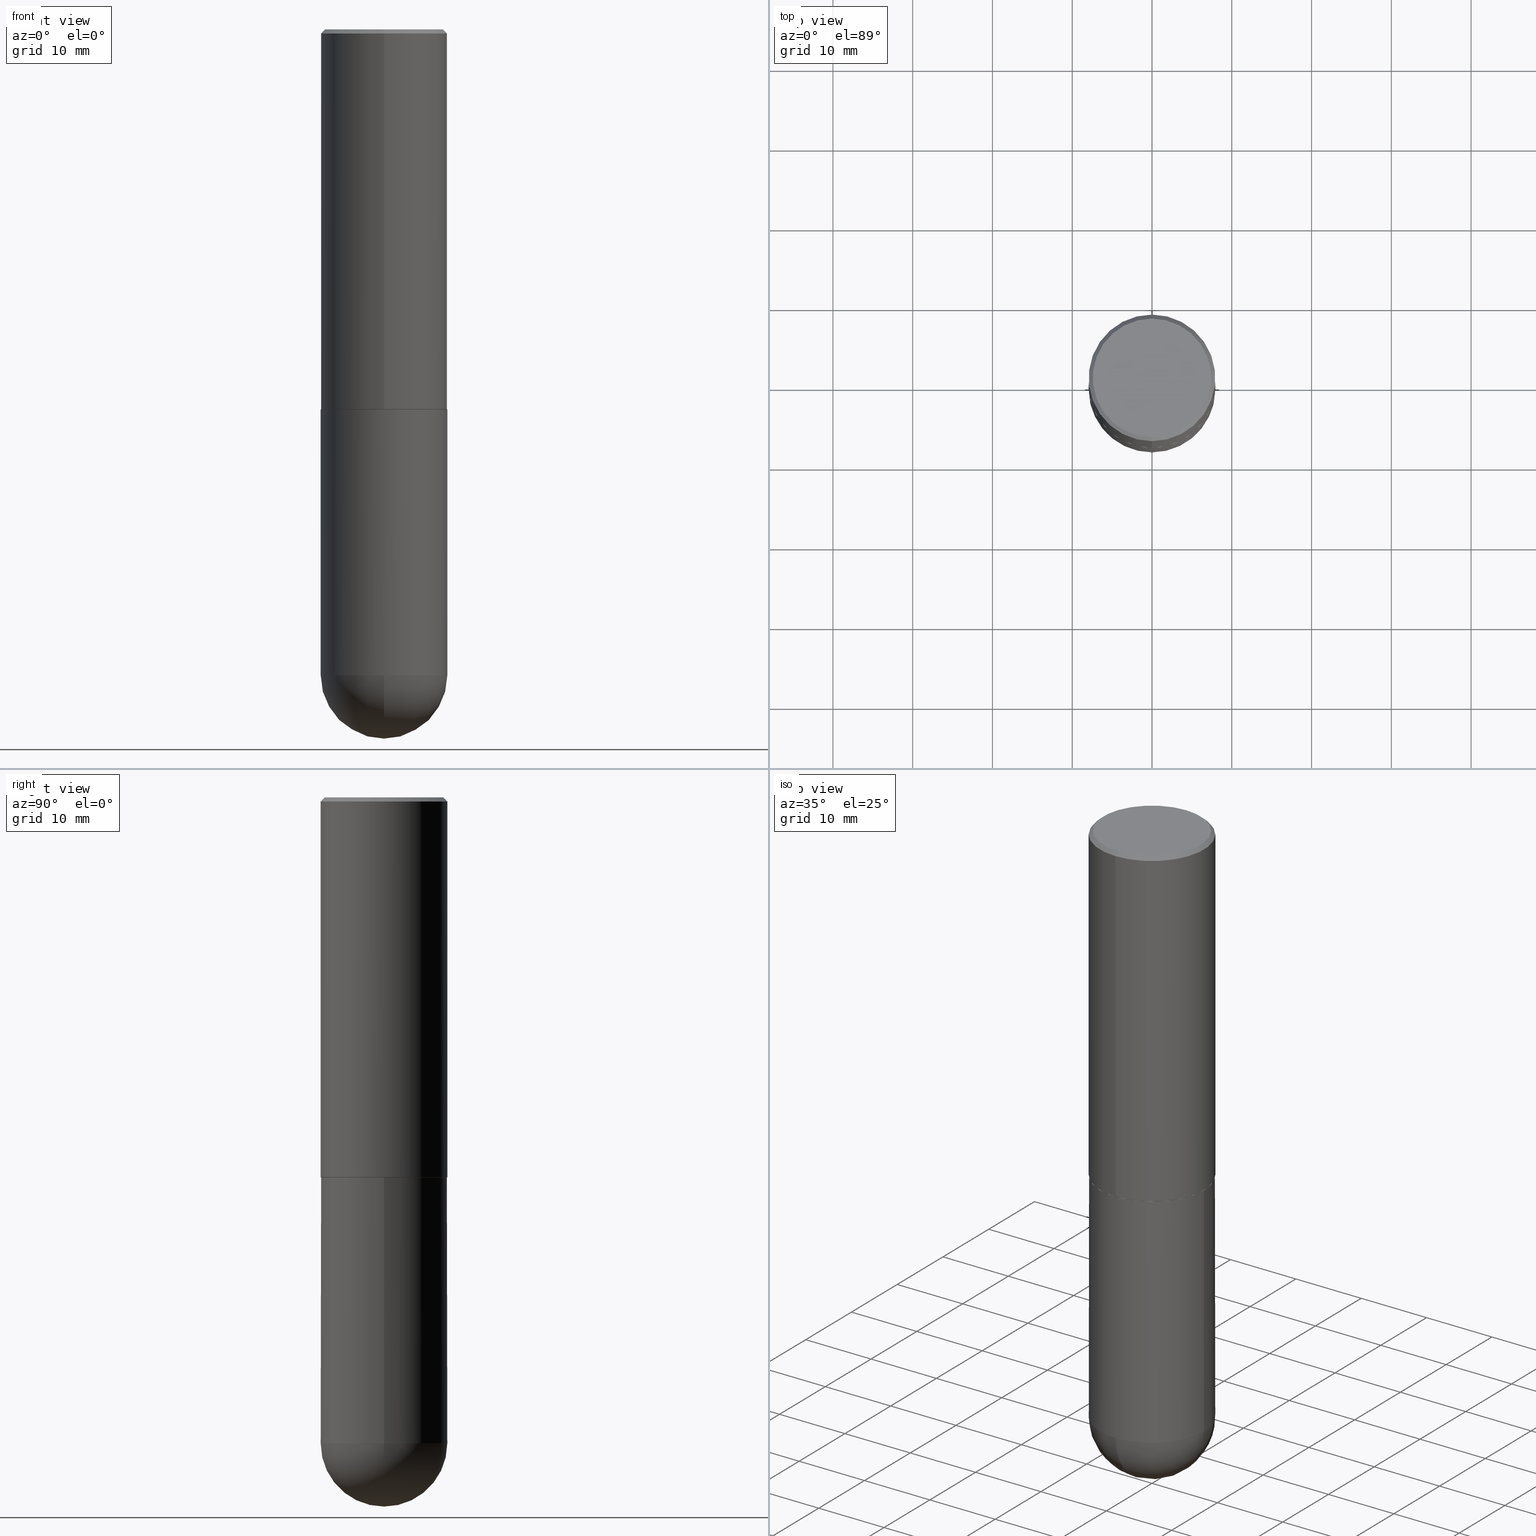
[diagram: canonical four-view strip — front | top / right | iso, engineering-drawing reading convention]
A machine part, canonical four-view strip (front | top / right | iso — engineering-drawing reading convention). The complete STEP part file that produces these views, byte-faithful:
ISO-10303-21;
HEADER;
FILE_DESCRIPTION (( 'STEP AP203' ),
    '1' );
FILE_NAME ('32504.STEP',
    '2024-02-21T17:45:27',
    ( '' ),
    ( '' ),
    'SwSTEP 2.0',
    'SolidWorks 2023',
    '' );
FILE_SCHEMA (( 'CONFIG_CONTROL_DESIGN' ));
ENDSEC;

DATA;
#1 = CARTESIAN_POINT ( 'NONE',  ( 2.182175836777004101E-15, 0.3124999999999934497, -1.875000000000000888 ) ) ;
#2 = APPROVAL_PERSON_ORGANIZATION ( #172, #224, #141 ) ;
#3 = SPHERICAL_SURFACE ( 'NONE', #271, 0.3125000000000002776 ) ;
#4 = COORDINATED_UNIVERSAL_TIME_OFFSET ( 5, 0, .BEHIND. ) ;
#5 = DIRECTION ( 'NONE',  ( -1.000000000000000000, 6.982962677686265922E-15, -4.876176775795935793E-29 ) ) ;
#6 = LINE ( 'NONE', #183, #76 ) ;
#7 = AXIS2_PLACEMENT_3D ( 'NONE', #32, #113, #191 ) ;
#8 = CIRCLE ( 'NONE', #352, 0.3125000000000000000 ) ;
#9 = LINE ( 'NONE', #228, #77 ) ;
#10 = DIRECTION ( 'NONE',  ( -2.444001851767069414E-29, 3.493582101063678231E-15, 1.000000000000000000 ) ) ;
#11 = DIRECTION ( 'NONE',  ( -2.444001851767069414E-29, 3.493582101063678231E-15, 1.000000000000000000 ) ) ;
#12 = CARTESIAN_POINT ( 'NONE',  ( 0.000000000000000000, 0.000000000000000000, 0.000000000000000000 ) ) ;
#13 = VERTEX_POINT ( 'NONE', #301 ) ;
#14 = DIRECTION ( 'NONE',  ( -1.000000000000000000, 6.982962677686265922E-15, -4.883557194083112901E-29 ) ) ;
#15 = ADVANCED_FACE ( 'NONE', ( #75 ), #204, .T. ) ;
#16 = COORDINATED_UNIVERSAL_TIME_OFFSET ( 5, 0, .BEHIND. ) ;
#17 = ADVANCED_FACE ( 'NONE', ( #347 ), #282, .F. ) ;
#18 = CALENDAR_DATE ( 2024, 21, 2 ) ;
#19 = AXIS2_PLACEMENT_3D ( 'NONE', #284, #356, #394 ) ;
#20 = EDGE_LOOP ( 'NONE', ( #309, #111, #304, #207 ) ) ;
#21 = EDGE_CURVE ( 'NONE', #13, #166, #407, .T. ) ;
#22 = ORIENTED_EDGE ( 'NONE', *, *, #21, .T. ) ;
#23 = APPLICATION_PROTOCOL_DEFINITION ( 'international standard', 'config_control_design', 1994, #57 ) ;
#24 = EDGE_CURVE ( 'NONE', #307, #373, #315, .T. ) ;
#25 = ORIENTED_EDGE ( 'NONE', *, *, #340, .F. ) ;
#26 = ORIENTED_EDGE ( 'NONE', *, *, #364, .F. ) ;
#27 = CLOSED_SHELL ( 'NONE', ( #110, #200, #348, #17, #311 ) ) ;
#28 = PERSON_AND_ORGANIZATION ( #125, #223 ) ;
#29 = CARTESIAN_POINT ( 'NONE',  ( -2.182175836776959136E-15, -0.3125000000000001665, 1.091744406582400014E-15 ) ) ;
#30 = PERSON_AND_ORGANIZATION_ROLE ( 'design_supplier' ) ;
#31 = DIRECTION ( 'NONE',  ( 1.000000000000000000, -6.982962677686266711E-15, 4.876176775795936353E-29 ) ) ;
#32 = CARTESIAN_POINT ( 'NONE',  ( 7.463812041801236655E-29, -1.160327913570257494E-14, -3.187500000000000000 ) ) ;
#33 = AXIS2_PLACEMENT_3D ( 'NONE', #350, #233, #393 ) ;
#34 = DIRECTION ( 'NONE',  ( 1.000000000000000000, -6.982962677686269077E-15, 0.000000000000000000 ) ) ;
#35 = CARTESIAN_POINT ( 'NONE',  ( 4.580059470211486852E-29, -6.546972857393332440E-15, -1.873999999999999666 ) ) ;
#36 = EDGE_CURVE ( 'NONE', #373, #334, #127, .T. ) ;
#37 = DIRECTION ( 'NONE',  ( 6.982962677686265922E-15, 1.000000000000000000, -3.496765431890253764E-15 ) ) ;
#38 = AXIS2_PLACEMENT_3D ( 'NONE', #236, #357, #70 ) ;
#39 = FACE_OUTER_BOUND ( 'NONE', #391, .T. ) ;
#40 = DIRECTION ( 'NONE',  ( -2.444001851767069414E-29, 3.493582101063678231E-15, 1.000000000000000000 ) ) ;
#41 = AXIS2_PLACEMENT_3D ( 'NONE', #35, #225, #114 ) ;
#42 = CARTESIAN_POINT ( 'NONE',  ( 7.463812041801236655E-29, -1.160327913570257494E-14, -3.187500000000000000 ) ) ;
#43 = CARTESIAN_POINT ( 'NONE',  ( 0.3125000000000000000, -8.728703347107855476E-15, -1.874999999999999778 ) ) ;
#44 = ORIENTED_EDGE ( 'NONE', *, *, #340, .T. ) ;
#45 = DATE_TIME_ROLE ( 'creation_date' ) ;
#46 = CC_DESIGN_APPROVAL ( #297, ( #231 ) ) ;
#47 = VERTEX_POINT ( 'NONE', #154 ) ;
#48 = CIRCLE ( 'NONE', #245, 0.3114999999999999991 ) ;
#49 = APPROVAL_DATE_TIME ( #208, #314 ) ;
#50 = EDGE_LOOP ( 'NONE', ( #142, #26, #274, #258 ) ) ;
#51 = ORIENTED_EDGE ( 'NONE', *, *, #392, .T. ) ;
#52 = EDGE_CURVE ( 'NONE', #78, #80, #6, .T. ) ;
#53 = EDGE_LOOP ( 'NONE', ( #330, #177 ) ) ;
#54 = AXIS2_PLACEMENT_3D ( 'NONE', #381, #86, #349 ) ;
#55 = DIRECTION ( 'NONE',  ( 6.982962677686265133E-15, 1.000000000000000000, -3.496765431890256920E-15 ) ) ;
#56 = FACE_OUTER_BOUND ( 'NONE', #278, .T. ) ;
#57 = APPLICATION_CONTEXT ( 'configuration controlled 3d designs of mechanical parts and assemblies' ) ;
#58 = DIRECTION ( 'NONE',  ( 2.438088387897960049E-29, -3.491481338843145188E-15, -1.000000000000000000 ) ) ;
#59 = AXIS2_PLACEMENT_3D ( 'NONE', #305, #405, #365 ) ;
#60 = DATE_AND_TIME ( #155, #230 ) ;
#61 = DIRECTION ( 'NONE',  ( -2.445468806185136597E-29, 3.491481338843145583E-15, 1.000000000000000000 ) ) ;
#62 = CARTESIAN_POINT ( 'NONE',  ( 7.463812041801236655E-29, -1.160327913570257494E-14, -3.187500000000000000 ) ) ;
#63 = DIRECTION ( 'NONE',  ( 2.444001851767069414E-29, -3.493582101063678231E-15, -1.000000000000000000 ) ) ;
#64 = EDGE_LOOP ( 'NONE', ( #134, #148 ) ) ;
#65 = APPROVAL_PERSON_ORGANIZATION ( #79, #314, #105 ) ;
#66 = DIRECTION ( 'NONE',  ( -2.445468806185136877E-29, 3.491481338843145188E-15, 1.000000000000000000 ) ) ;
#67 = CARTESIAN_POINT ( 'NONE',  ( 0.000000000000000000, 0.000000000000000000, 0.000000000000000000 ) ) ;
#68 = LINE ( 'NONE', #131, #213 ) ;
#69 = ORIENTED_EDGE ( 'NONE', *, *, #91, .T. ) ;
#70 = DIRECTION ( 'NONE',  ( -6.982962677686265133E-15, -1.000000000000000000, 3.493582101063678231E-15 ) ) ;
#71 = VERTEX_POINT ( 'NONE', #120 ) ;
#72 = EDGE_LOOP ( 'NONE', ( #25, #237 ) ) ;
#73 = LINE ( 'NONE', #203, #272 ) ;
#74 = CC_DESIGN_DATE_AND_TIME_ASSIGNMENT ( #273, #45, ( #234 ) ) ;
#75 = FACE_OUTER_BOUND ( 'NONE', #20, .T. ) ;
#76 = VECTOR ( 'NONE', #219, 39.37007874015748143 ) ;
#77 = VECTOR ( 'NONE', #193, 39.37007874015748854 ) ;
#78 = VERTEX_POINT ( 'NONE', #255 ) ;
#79 = PERSON_AND_ORGANIZATION ( #125, #223 ) ;
#80 = VERTEX_POINT ( 'NONE', #214 ) ;
#81 = EDGE_LOOP ( 'NONE', ( #366, #241, #281, #355 ) ) ;
#82 = PERSON_AND_ORGANIZATION_ROLE ( 'creator' ) ;
#83 = ADVANCED_FACE ( 'NONE', ( #386 ), #205, .T. ) ;
#84 = LINE ( 'NONE', #312, #338 ) ;
#85 = CIRCLE ( 'NONE', #19, 0.3125000000000000000 ) ;
#86 = DIRECTION ( 'NONE',  ( -2.444001851767069414E-29, 3.493582101063678231E-15, 1.000000000000000000 ) ) ;
#87 = DIRECTION ( 'NONE',  ( 1.000000000000000000, -6.982962677686269077E-15, 0.000000000000000000 ) ) ;
#88 = DIRECTION ( 'NONE',  ( 2.444001851767069414E-29, -3.493582101063678231E-15, -1.000000000000000000 ) ) ;
#89 = CIRCLE ( 'NONE', #198, 0.3125000000000000000 ) ;
#90 = CARTESIAN_POINT ( 'NONE',  ( 0.000000000000000000, 0.000000000000000000, 0.000000000000000000 ) ) ;
#91 = EDGE_CURVE ( 'NONE', #71, #47, #135, .T. ) ;
#92 = CYLINDRICAL_SURFACE ( 'NONE', #339, 0.3125000000000001665 ) ;
#93 = CC_DESIGN_PERSON_AND_ORGANIZATION_ASSIGNMENT ( #287, #383, ( #231 ) ) ;
#94 = DIRECTION ( 'NONE',  ( -6.982962677686265133E-15, -1.000000000000000000, 3.493582101063678231E-15 ) ) ;
#95 = AXIS2_PLACEMENT_3D ( 'NONE', #1, #58, #5 ) ;
#96 = AXIS2_PLACEMENT_3D ( 'NONE', #372, #169, #240 ) ;
#97 = LINE ( 'NONE', #165, #153 ) ;
#98 = FACE_OUTER_BOUND ( 'NONE', #211, .T. ) ;
#99 = DIRECTION ( 'NONE',  ( -6.982962677686265922E-15, -1.000000000000000000, 3.507991003100177457E-15 ) ) ;
#100 = VECTOR ( 'NONE', #150, 39.37007874015748143 ) ;
#101 = AXIS2_PLACEMENT_3D ( 'NONE', #129, #63, #395 ) ;
#102 = ORIENTED_EDGE ( 'NONE', *, *, #24, .T. ) ;
#103 = CARTESIAN_POINT ( 'NONE',  ( 2.112346210000095443E-15, 0.2924999999999999267, -1.012721266631418966E-15 ) ) ;
#104 = ORIENTED_EDGE ( 'NONE', *, *, #288, .T. ) ;
#105 = APPROVAL_ROLE ( '' ) ;
#106 = EDGE_LOOP ( 'NONE', ( #353, #400, #144, #406 ) ) ;
#107 = DIRECTION ( 'NONE',  ( 0.000000000000000000, 0.000000000000000000, 1.000000000000000000 ) ) ;
#108 = CIRCLE ( 'NONE', #59, 0.3125000000000000000 ) ;
#109 = ORIENTED_EDGE ( 'NONE', *, *, #21, .F. ) ;
#110 = ADVANCED_FACE ( 'NONE', ( #411 ), #182, .T. ) ;
#111 = ORIENTED_EDGE ( 'NONE', *, *, #132, .T. ) ;
#112 = APPROVAL_ROLE ( '' ) ;
#113 = DIRECTION ( 'NONE',  ( 1.000000000000000000, -6.982962677686265922E-15, 4.883557194083112340E-29 ) ) ;
#114 = DIRECTION ( 'NONE',  ( -6.982962677686265922E-15, -1.000000000000000000, 3.496765431890254553E-15 ) ) ;
#115 = CC_DESIGN_APPROVAL ( #314, ( #234 ) ) ;
#116 = DATE_AND_TIME ( #410, #346 ) ;
#117 = CARTESIAN_POINT ( 'NONE',  ( 7.463812041801236655E-29, -1.160327913570257494E-14, -3.187500000000000000 ) ) ;
#118 = APPROVAL_DATE_TIME ( #188, #297 ) ;
#119 = DIRECTION ( 'NONE',  ( -2.444001851767069414E-29, 3.493582101063678231E-15, 1.000000000000000000 ) ) ;
#120 = CARTESIAN_POINT ( 'NONE',  ( -2.220446049250237350E-15, -0.3125000000000114908, -3.187499999999998668 ) ) ;
#121 = AXIS2_PLACEMENT_3D ( 'NONE', #62, #345, #186 ) ;
#122 = CIRCLE ( 'NONE', #38, 0.2924999999999999267 ) ;
#123 = CARTESIAN_POINT ( 'NONE',  ( 2.216893335571558331E-15, 0.3114999999999934488, -1.875000000000000666 ) ) ;
#124 = DIRECTION ( 'NONE',  ( -1.000000000000000000, 6.982962677686265922E-15, -4.883557194083112901E-29 ) ) ;
#125 = PERSON ( 'UNSPECIFIED', 'UNSPECIFIED', 'UNSPECIFIED', ('UNSPECIFIED'), ('UNSPECIFIED'), ('UNSPECIFIED') ) ;
#126 = DIRECTION ( 'NONE',  ( -6.982962677686265922E-15, -1.000000000000000000, 3.507991003100177457E-15 ) ) ;
#127 = CIRCLE ( 'NONE', #318, 0.3125000000000002220 ) ;
#128 = APPROVAL_PERSON_ORGANIZATION ( #285, #297, #112 ) ;
#129 = CARTESIAN_POINT ( 'NONE',  ( 4.888003703534155364E-31, -6.987164202127379586E-17, -0.02000000000000006981 ) ) ;
#130 = ADVANCED_FACE ( 'NONE', ( #190 ), #378, .F. ) ;
#131 = CARTESIAN_POINT ( 'NONE',  ( 2.220446049250313475E-15, 0.3125000000000001665, -1.091744406582400014E-15 ) ) ;
#132 = EDGE_CURVE ( 'NONE', #334, #373, #185, .T. ) ;
#133 = DIRECTION ( 'NONE',  ( -6.982962677686265133E-15, -1.000000000000000000, 3.496765431890256920E-15 ) ) ;
#134 = ORIENTED_EDGE ( 'NONE', *, *, #239, .T. ) ;
#135 = CIRCLE ( 'NONE', #264, 0.3125000000000000000 ) ;
#136 = AXIS2_PLACEMENT_3D ( 'NONE', #335, #275, #361 ) ;
#137 = PERSON_AND_ORGANIZATION ( #125, #223 ) ;
#138 = EDGE_CURVE ( 'NONE', #78, #369, #158, .T. ) ;
#139 = EDGE_LOOP ( 'NONE', ( #180, #299, #102, #175 ) ) ;
#140 = EDGE_CURVE ( 'NONE', #276, #71, #379, .T. ) ;
#141 = APPROVAL_ROLE ( '' ) ;
#142 = ORIENTED_EDGE ( 'NONE', *, *, #52, .F. ) ;
#143 = CARTESIAN_POINT ( 'NONE',  ( -2.182175836776913776E-15, -0.3125000000000067724, -1.873999999999998556 ) ) ;
#144 = ORIENTED_EDGE ( 'NONE', *, *, #409, .T. ) ;
#145 = APPROVAL_STATUS ( 'not_yet_approved' ) ;
#146 = ADVANCED_BREP_SHAPE_REPRESENTATION ( '32504', ( #397, #259, #147 ), #250 ) ;
#147 = AXIS2_PLACEMENT_3D ( 'NONE', #326, #107, #333 ) ;
#148 = ORIENTED_EDGE ( 'NONE', *, *, #210, .T. ) ;
#149 = EDGE_CURVE ( 'NONE', #276, #13, #179, .T. ) ;
#150 = DIRECTION ( 'NONE',  ( -2.444001851767069134E-29, 3.493582101063678231E-15, 1.000000000000000000 ) ) ;
#151 = EDGE_CURVE ( 'NONE', #373, #80, #384, .T. ) ;
#152 = CARTESIAN_POINT ( 'NONE',  ( 2.042516583223232145E-15, 0.2924999999999999267, -1.017297015596272278E-15 ) ) ;
#153 = VECTOR ( 'NONE', #66, 39.37007874015748143 ) ;
#154 = CARTESIAN_POINT ( 'NONE',  ( 0.3125000000000000000, -1.101998797572367239E-14, -3.187500000000000000 ) ) ;
#155 = CALENDAR_DATE ( 2024, 21, 2 ) ;
#156 = DIRECTION ( 'NONE',  ( -6.982962677686265133E-15, -1.000000000000000000, 3.493582101063678231E-15 ) ) ;
#157 = CARTESIAN_POINT ( 'NONE',  ( 4.582503472063253611E-29, -6.550466439494396141E-15, -1.874999999999999556 ) ) ;
#158 = CIRCLE ( 'NONE', #54, 0.2924999999999999267 ) ;
#159 = CONICAL_SURFACE ( 'NONE', #101, 0.3125000000000000000, 0.7853981633974487231 ) ;
#160 = FACE_OUTER_BOUND ( 'NONE', #72, .T. ) ;
#161 = PRODUCT_RELATED_PRODUCT_CATEGORY ( 'detail', '', ( #290 ) ) ;
#162 = DIRECTION ( 'NONE',  ( -6.982962677686265133E-15, -1.000000000000000000, 3.496765431890256920E-15 ) ) ;
#163 = CARTESIAN_POINT ( 'NONE',  ( -2.175192874099225790E-15, -0.3115000000000065494, -1.874999999999998446 ) ) ;
#164 = LOCAL_TIME ( 12, 45, 27.00000000000000000, #16 ) ;
#165 = CARTESIAN_POINT ( 'NONE',  ( -0.3125000000000000000, 2.220446049250313081E-15, -1.537167215704658232E-29 ) ) ;
#166 = VERTEX_POINT ( 'NONE', #249 ) ;
#167 = CARTESIAN_POINT ( 'NONE',  ( 4.888003703534155364E-31, -6.987164202127379586E-17, -0.02000000000000006981 ) ) ;
#168 = ORIENTED_EDGE ( 'NONE', *, *, #376, .T. ) ;
#169 = DIRECTION ( 'NONE',  ( -2.445468806185136597E-29, 3.491481338843145583E-15, 1.000000000000000000 ) ) ;
#170 = ORIENTED_EDGE ( 'NONE', *, *, #140, .F. ) ;
#171 = PRODUCT_DEFINITION_FORMATION_WITH_SPECIFIED_SOURCE ( 'ANY', '', #290, .NOT_KNOWN. ) ;
#172 = PERSON_AND_ORGANIZATION ( #125, #223 ) ;
#173 = ORIENTED_EDGE ( 'NONE', *, *, #91, .F. ) ;
#174 =( CONVERSION_BASED_UNIT ( 'INCH', #329 ) LENGTH_UNIT ( ) NAMED_UNIT ( #382 ) );
#175 = ORIENTED_EDGE ( 'NONE', *, *, #132, .F. ) ;
#176 =( NAMED_UNIT ( * ) SI_UNIT ( $, .STERADIAN. ) SOLID_ANGLE_UNIT ( ) );
#177 = ORIENTED_EDGE ( 'NONE', *, *, #138, .T. ) ;
#178 = CC_DESIGN_DATE_AND_TIME_ASSIGNMENT ( #60, #412, ( #231 ) ) ;
#179 = CIRCLE ( 'NONE', #7, 0.3125000000000002776 ) ;
#180 = ORIENTED_EDGE ( 'NONE', *, *, #288, .F. ) ;
#181 = PRODUCT_DEFINITION_SHAPE ( 'NONE', 'NONE',  #234 ) ;
#182 = CYLINDRICAL_SURFACE ( 'NONE', #358, 0.3125000000000000000 ) ;
#183 = CARTESIAN_POINT ( 'NONE',  ( -2.143905624303602824E-15, -0.3125000000000000555, -0.01999999999999897693 ) ) ;
#184 = APPROVAL_STATUS ( 'not_yet_approved' ) ;
#185 = CIRCLE ( 'NONE', #41, 0.3125000000000002220 ) ;
#186 = DIRECTION ( 'NONE',  ( -7.105427357601000281E-15, -1.000000000000000000, 0.000000000000000000 ) ) ;
#187 = CC_DESIGN_SECURITY_CLASSIFICATION ( #231, ( #171 ) ) ;
#188 = DATE_AND_TIME ( #216, #371 ) ;
#189 = EDGE_CURVE ( 'NONE', #47, #402, #84, .T. ) ;
#190 = FACE_OUTER_BOUND ( 'NONE', #53, .T. ) ;
#191 = DIRECTION ( 'NONE',  ( 6.982962677686265922E-15, 1.000000000000000000, 0.000000000000000000 ) ) ;
#192 = CARTESIAN_POINT ( 'NONE',  ( 4.582503472063253611E-29, -6.550466439494396141E-15, -1.874999999999999556 ) ) ;
#193 = DIRECTION ( 'NONE',  ( 5.024295867789091064E-15, 0.7071067811866947883, 0.7071067811864001351 ) ) ;
#194 = CC_DESIGN_PERSON_AND_ORGANIZATION_ASSIGNMENT ( #28, #30, ( #171 ) ) ;
#195 = CARTESIAN_POINT ( 'NONE',  ( 4.582503472063253611E-29, -6.550466439494396141E-15, -1.874999999999999556 ) ) ;
#196 = CARTESIAN_POINT ( 'NONE',  ( 8.241383017002520278E-29, -1.267523194785438148E-14, -3.500000000000000444 ) ) ;
#197 = AXIS2_PLACEMENT_3D ( 'NONE', #310, #88, #55 ) ;
#198 = AXIS2_PLACEMENT_3D ( 'NONE', #354, #269, #261 ) ;
#199 = CALENDAR_DATE ( 2024, 21, 2 ) ;
#200 = ADVANCED_FACE ( 'NONE', ( #56 ), #3, .T. ) ;
#201 = ORIENTED_EDGE ( 'NONE', *, *, #189, .T. ) ;
#202 = CC_DESIGN_PERSON_AND_ORGANIZATION_ASSIGNMENT ( #325, #399, ( #234 ) ) ;
#203 = CARTESIAN_POINT ( 'NONE',  ( 2.182175836776958741E-15, 0.3124999999999999445, -0.02000000000000116268 ) ) ;
#204 = CYLINDRICAL_SURFACE ( 'NONE', #229, 0.3125000000000001665 ) ;
#205 = CONICAL_SURFACE ( 'NONE', #197, 0.3125000000000000000, 0.7853981633974487231 ) ;
#206 = CONICAL_SURFACE ( 'NONE', #320, 0.3114999999999999991, 0.7853981633976532262 ) ;
#207 = ORIENTED_EDGE ( 'NONE', *, *, #226, .F. ) ;
#208 = DATE_AND_TIME ( #199, #302 ) ;
#209 = ORIENTED_EDGE ( 'NONE', *, *, #189, .F. ) ;
#210 = EDGE_CURVE ( 'NONE', #268, #402, #85, .T. ) ;
#211 = EDGE_LOOP ( 'NONE', ( #170, #359, #270, #173 ) ) ;
#212 = SECURITY_CLASSIFICATION_LEVEL ( 'unclassified' ) ;
#213 = VECTOR ( 'NONE', #396, 39.37007874015748143 ) ;
#214 = CARTESIAN_POINT ( 'NONE',  ( -2.143905624303602824E-15, -0.3125000000000000555, -0.01999999999999897693 ) ) ;
#215 = ADVANCED_FACE ( 'NONE', ( #292 ), #92, .T. ) ;
#216 = CALENDAR_DATE ( 2024, 21, 2 ) ;
#217 = DIRECTION ( 'NONE',  ( -6.982962677686265922E-15, -1.000000000000000000, 3.496765431890254553E-15 ) ) ;
#218 = SHAPE_DEFINITION_REPRESENTATION ( #181, #146 ) ;
#219 = DIRECTION ( 'NONE',  ( -4.851104656540965853E-15, -0.7071067811865502373, -0.7071067811865447972 ) ) ;
#220 = COORDINATED_UNIVERSAL_TIME_OFFSET ( 5, 0, .BEHIND. ) ;
#221 = CLOSED_SHELL ( 'NONE', ( #328, #215, #83, #344, #15, #260, #367, #130 ) ) ;
#222 = CARTESIAN_POINT ( 'NONE',  ( 7.794931819715121781E-29, -1.112909676756252622E-14, -3.187500000000000000 ) ) ;
#223 = ORGANIZATION ( 'UNSPECIFIED', 'UNSPECIFIED', '' ) ;
#224 = APPROVAL ( #303, 'UNSPECIFIED' ) ;
#225 = DIRECTION ( 'NONE',  ( -2.444001851767069414E-29, 3.493582101063678231E-15, 1.000000000000000000 ) ) ;
#226 = EDGE_CURVE ( 'NONE', #235, #80, #8, .T. ) ;
#227 = FACE_OUTER_BOUND ( 'NONE', #139, .T. ) ;
#228 = CARTESIAN_POINT ( 'NONE',  ( 2.213340621892757432E-15, 0.3114999999999934488, -1.875000000000000666 ) ) ;
#229 = AXIS2_PLACEMENT_3D ( 'NONE', #243, #253, #156 ) ;
#230 = LOCAL_TIME ( 12, 45, 27.00000000000000000, #220 ) ;
#231 = SECURITY_CLASSIFICATION ( '', '', #212 ) ;
#232 = CARTESIAN_POINT ( 'NONE',  ( -0.3125000000000000000, -6.617366089696398596E-15, -1.874999999999999778 ) ) ;
#233 = DIRECTION ( 'NONE',  ( -2.444001851767069414E-29, 3.493582101063678231E-15, 1.000000000000000000 ) ) ;
#234 = PRODUCT_DEFINITION ( 'UNKNOWN', '', #171, #267 ) ;
#235 = VERTEX_POINT ( 'NONE', #390 ) ;
#236 = CARTESIAN_POINT ( 'NONE',  ( -2.236627788664550578E-46, 3.197150936514439104E-32, 9.151497929706629664E-18 ) ) ;
#237 = ORIENTED_EDGE ( 'NONE', *, *, #317, .F. ) ;
#238 = CIRCLE ( 'NONE', #332, 0.3114999999999999991 ) ;
#239 = EDGE_CURVE ( 'NONE', #402, #268, #89, .T. ) ;
#240 = DIRECTION ( 'NONE',  ( 1.000000000000000000, -6.982962677686269077E-15, 0.000000000000000000 ) ) ;
#241 = ORIENTED_EDGE ( 'NONE', *, *, #362, .T. ) ;
#242 = ORIENTED_EDGE ( 'NONE', *, *, #239, .F. ) ;
#243 = CARTESIAN_POINT ( 'NONE',  ( 0.000000000000000000, 0.000000000000000000, 0.000000000000000000 ) ) ;
#244 = AXIS2_PLACEMENT_3D ( 'NONE', #222, #313, #34 ) ;
#245 = AXIS2_PLACEMENT_3D ( 'NONE', #192, #11, #99 ) ;
#246 = PERSON_AND_ORGANIZATION_ROLE ( 'design_owner' ) ;
#247 = ORIENTED_EDGE ( 'NONE', *, *, #140, .T. ) ;
#248 = ORIENTED_EDGE ( 'NONE', *, *, #210, .F. ) ;
#249 = CARTESIAN_POINT ( 'NONE',  ( -0.3125000000000000000, -6.617366089696400174E-15, -3.187500000000000000 ) ) ;
#250 =( GEOMETRIC_REPRESENTATION_CONTEXT ( 3 ) GLOBAL_UNCERTAINTY_ASSIGNED_CONTEXT ( ( #262 ) ) GLOBAL_UNIT_ASSIGNED_CONTEXT ( ( #174, #280, #176 ) ) REPRESENTATION_CONTEXT ( 'NONE', 'WORKASPACE' ) );
#251 = CARTESIAN_POINT ( 'NONE',  ( -2.175192874099225790E-15, -0.3115000000000065494, -1.874999999999998446 ) ) ;
#252 = APPROVAL_DATE_TIME ( #116, #224 ) ;
#253 = DIRECTION ( 'NONE',  ( -2.444001851767069414E-29, 3.493582101063678231E-15, 1.000000000000000000 ) ) ;
#254 = APPLICATION_CONTEXT ( 'configuration controlled 3d designs of mechanical parts and assemblies' ) ;
#255 = CARTESIAN_POINT ( 'NONE',  ( -2.075300644325887493E-15, -0.2924999999999999267, 1.031024262490832213E-15 ) ) ;
#256 = DIRECTION ( 'NONE',  ( 2.444001851767069134E-29, -3.493582101063678231E-15, -1.000000000000000000 ) ) ;
#257 = DIRECTION ( 'NONE',  ( 6.982962677686265922E-15, 1.000000000000000000, -3.496765431890253764E-15 ) ) ;
#258 = ORIENTED_EDGE ( 'NONE', *, *, #226, .T. ) ;
#259 = MANIFOLD_SOLID_BREP ( 'Body-Move/Copy2[2]', #221 ) ;
#260 = ADVANCED_FACE ( 'NONE', ( #227 ), #279, .T. ) ;
#261 = DIRECTION ( 'NONE',  ( 1.000000000000000000, -6.982962677686265133E-15, 0.000000000000000000 ) ) ;
#262 = UNCERTAINTY_MEASURE_WITH_UNIT (LENGTH_MEASURE( 1.000000000000000082E-05 ), #174, 'distance_accuracy_value', 'NONE');
#263 = FACE_OUTER_BOUND ( 'NONE', #50, .T. ) ;
#264 = AXIS2_PLACEMENT_3D ( 'NONE', #283, #286, #87 ) ;
#265 = AXIS2_PLACEMENT_3D ( 'NONE', #67, #322, #291 ) ;
#266 = DIRECTION ( 'NONE',  ( -6.982962677686265922E-15, -1.000000000000000000, 3.507991003100177457E-15 ) ) ;
#267 = DESIGN_CONTEXT ( 'detailed design', #254, 'design' ) ;
#268 = VERTEX_POINT ( 'NONE', #232 ) ;
#269 = DIRECTION ( 'NONE',  ( -2.445468806185136597E-29, 3.491481338843145583E-15, 1.000000000000000000 ) ) ;
#270 = ORIENTED_EDGE ( 'NONE', *, *, #392, .F. ) ;
#271 = AXIS2_PLACEMENT_3D ( 'NONE', #117, #124, #37 ) ;
#272 = VECTOR ( 'NONE', #277, 39.37007874015748143 ) ;
#273 = DATE_AND_TIME ( #18, #164 ) ;
#274 = ORIENTED_EDGE ( 'NONE', *, *, #398, .T. ) ;
#275 = DIRECTION ( 'NONE',  ( -2.444001851767069134E-29, 3.493582101063678231E-15, 1.000000000000000000 ) ) ;
#276 = VERTEX_POINT ( 'NONE', #196 ) ;
#277 = DIRECTION ( 'NONE',  ( 4.937700262164549620E-15, 0.7071067811865453523, -0.7071067811865496822 ) ) ;
#278 = EDGE_LOOP ( 'NONE', ( #306, #247, #408, #109 ) ) ;
#279 = CONICAL_SURFACE ( 'NONE', #33, 0.3114999999999999991, 0.7853981633976532262 ) ;
#280 =( NAMED_UNIT ( * ) PLANE_ANGLE_UNIT ( ) SI_UNIT ( $, .RADIAN. ) );
#281 = ORIENTED_EDGE ( 'NONE', *, *, #409, .F. ) ;
#282 = PLANE ( 'NONE',  #95 ) ;
#283 = CARTESIAN_POINT ( 'NONE',  ( 7.794931819715121781E-29, -1.112909676756252622E-14, -3.187500000000000000 ) ) ;
#284 = CARTESIAN_POINT ( 'NONE',  ( 4.585254011597130558E-29, -6.546527510330897918E-15, -1.874999999999999778 ) ) ;
#285 = PERSON_AND_ORGANIZATION ( #125, #223 ) ;
#286 = DIRECTION ( 'NONE',  ( -2.445468806185136597E-29, 3.491481338843145583E-15, 1.000000000000000000 ) ) ;
#287 = PERSON_AND_ORGANIZATION ( #125, #223 ) ;
#288 = EDGE_CURVE ( 'NONE', #327, #334, #9, .T. ) ;
#289 = CARTESIAN_POINT ( 'NONE',  ( 4.580059470211486852E-29, -6.546972857393332440E-15, -1.873999999999999666 ) ) ;
#290 = PRODUCT ( '32504', '32504', '', ( #374 ) ) ;
#291 = DIRECTION ( 'NONE',  ( 1.000000000000000000, -6.982962677686266711E-15, 4.876176775795936353E-29 ) ) ;
#292 = FACE_OUTER_BOUND ( 'NONE', #81, .T. ) ;
#293 = DIRECTION ( 'NONE',  ( -2.444001851767069414E-29, 3.493582101063678231E-15, 1.000000000000000000 ) ) ;
#294 = DIRECTION ( 'NONE',  ( -2.444001851767069414E-29, 3.493582101063678231E-15, 1.000000000000000000 ) ) ;
#295 = ORIENTED_EDGE ( 'NONE', *, *, #321, .F. ) ;
#296 = CARTESIAN_POINT ( 'NONE',  ( 4.888003703534155364E-31, -6.987164202127379586E-17, -0.02000000000000006981 ) ) ;
#297 = APPROVAL ( #184, 'UNSPECIFIED' ) ;
#298 = DIRECTION ( 'NONE',  ( -2.444001851767069414E-29, 3.493582101063678231E-15, 1.000000000000000000 ) ) ;
#299 = ORIENTED_EDGE ( 'NONE', *, *, #317, .T. ) ;
#300 = COORDINATED_UNIVERSAL_TIME_OFFSET ( 5, 0, .BEHIND. ) ;
#301 = CARTESIAN_POINT ( 'NONE',  ( 2.182175836777035261E-15, 0.3124999999999887867, -3.187500000000000888 ) ) ;
#302 = LOCAL_TIME ( 12, 45, 27.00000000000000000, #300 ) ;
#303 = APPROVAL_STATUS ( 'not_yet_approved' ) ;
#304 = ORIENTED_EDGE ( 'NONE', *, *, #151, .T. ) ;
#305 = CARTESIAN_POINT ( 'NONE',  ( 7.794931819715121781E-29, -1.112909676756252622E-14, -3.187500000000000000 ) ) ;
#306 = ORIENTED_EDGE ( 'NONE', *, *, #149, .F. ) ;
#307 = VERTEX_POINT ( 'NONE', #163 ) ;
#308 = CIRCLE ( 'NONE', #96, 0.3125000000000000000 ) ;
#309 = ORIENTED_EDGE ( 'NONE', *, *, #362, .F. ) ;
#310 = CARTESIAN_POINT ( 'NONE',  ( 4.888003703534155364E-31, -6.987164202127379586E-17, -0.02000000000000006981 ) ) ;
#311 = ADVANCED_FACE ( 'NONE', ( #319 ), #351, .T. ) ;
#312 = CARTESIAN_POINT ( 'NONE',  ( 0.3125000000000000000, -2.182175836776958347E-15, 1.523805242436230075E-29 ) ) ;
#313 = DIRECTION ( 'NONE',  ( -2.445468806185136597E-29, 3.491481338843145583E-15, 1.000000000000000000 ) ) ;
#314 = APPROVAL ( #145, 'UNSPECIFIED' ) ;
#315 = LINE ( 'NONE', #251, #331 ) ;
#316 = PLANE ( 'NONE',  #136 ) ;
#317 = EDGE_CURVE ( 'NONE', #327, #307, #238, .T. ) ;
#318 = AXIS2_PLACEMENT_3D ( 'NONE', #289, #119, #217 ) ;
#319 = FACE_OUTER_BOUND ( 'NONE', #404, .T. ) ;
#320 = AXIS2_PLACEMENT_3D ( 'NONE', #195, #293, #126 ) ;
#321 = EDGE_CURVE ( 'NONE', #166, #268, #97, .T. ) ;
#322 = DIRECTION ( 'NONE',  ( -2.445468806185136597E-29, 3.491481338843145583E-15, 1.000000000000000000 ) ) ;
#323 = CARTESIAN_POINT ( 'NONE',  ( 2.220446049250337141E-15, 0.3124999999999936717, -1.874000000000000776 ) ) ;
#324 = SPHERICAL_SURFACE ( 'NONE', #401, 0.3125000000000002776 ) ;
#325 = PERSON_AND_ORGANIZATION ( #125, #223 ) ;
#326 = CARTESIAN_POINT ( 'NONE',  ( 0.000000000000000000, 0.000000000000000000, 0.000000000000000000 ) ) ;
#327 = VERTEX_POINT ( 'NONE', #123 ) ;
#328 = ADVANCED_FACE ( 'NONE', ( #39 ), #206, .T. ) ;
#329 = LENGTH_MEASURE_WITH_UNIT ( LENGTH_MEASURE( 0.02539999999999999897 ), #368 );
#330 = ORIENTED_EDGE ( 'NONE', *, *, #364, .T. ) ;
#331 = VECTOR ( 'NONE', #341, 39.37007874015748854 ) ;
#332 = AXIS2_PLACEMENT_3D ( 'NONE', #157, #294, #266 ) ;
#333 = DIRECTION ( 'NONE',  ( 1.000000000000000000, 0.000000000000000000, 0.000000000000000000 ) ) ;
#334 = VERTEX_POINT ( 'NONE', #323 ) ;
#335 = CARTESIAN_POINT ( 'NONE',  ( 4.582503472063253611E-29, -6.550466439494396141E-15, -1.874999999999999556 ) ) ;
#336 = ORIENTED_EDGE ( 'NONE', *, *, #321, .T. ) ;
#337 = EDGE_LOOP ( 'NONE', ( #22, #336, #242, #209, #51 ) ) ;
#338 = VECTOR ( 'NONE', #343, 39.37007874015748143 ) ;
#339 = AXIS2_PLACEMENT_3D ( 'NONE', #12, #40, #94 ) ;
#340 = EDGE_CURVE ( 'NONE', #307, #327, #48, .T. ) ;
#341 = DIRECTION ( 'NONE',  ( -4.937700262165559362E-15, -0.7071067811866899033, 0.7071067811864050201 ) ) ;
#342 = CC_DESIGN_PERSON_AND_ORGANIZATION_ASSIGNMENT ( #385, #82, ( #171 ) ) ;
#343 = DIRECTION ( 'NONE',  ( -2.445468806185136877E-29, 3.491481338843145188E-15, 1.000000000000000000 ) ) ;
#344 = ADVANCED_FACE ( 'NONE', ( #263 ), #159, .T. ) ;
#345 = DIRECTION ( 'NONE',  ( -1.000000000000000000, 7.105427357601001070E-15, -4.926315508542082329E-29 ) ) ;
#346 = LOCAL_TIME ( 12, 45, 27.00000000000000000, #4 ) ;
#347 = FACE_OUTER_BOUND ( 'NONE', #64, .T. ) ;
#348 = ADVANCED_FACE ( 'NONE', ( #98 ), #324, .T. ) ;
#349 = DIRECTION ( 'NONE',  ( -6.982962677686265133E-15, -1.000000000000000000, 3.493582101063678231E-15 ) ) ;
#350 = CARTESIAN_POINT ( 'NONE',  ( 4.582503472063253611E-29, -6.550466439494396141E-15, -1.874999999999999556 ) ) ;
#351 = CYLINDRICAL_SURFACE ( 'NONE', #265, 0.3125000000000000000 ) ;
#352 = AXIS2_PLACEMENT_3D ( 'NONE', #296, #10, #162 ) ;
#353 = ORIENTED_EDGE ( 'NONE', *, *, #138, .F. ) ;
#354 = CARTESIAN_POINT ( 'NONE',  ( 4.585254011597130558E-29, -6.546527510330897918E-15, -1.874999999999999778 ) ) ;
#355 = ORIENTED_EDGE ( 'NONE', *, *, #151, .F. ) ;
#356 = DIRECTION ( 'NONE',  ( -2.445468806185136597E-29, 3.491481338843145583E-15, 1.000000000000000000 ) ) ;
#357 = DIRECTION ( 'NONE',  ( -2.444001851767069414E-29, 3.493582101063678231E-15, 1.000000000000000000 ) ) ;
#358 = AXIS2_PLACEMENT_3D ( 'NONE', #90, #61, #31 ) ;
#359 = ORIENTED_EDGE ( 'NONE', *, *, #149, .T. ) ;
#360 = AXIS2_PLACEMENT_3D ( 'NONE', #167, #298, #133 ) ;
#361 = DIRECTION ( 'NONE',  ( -6.982962677686265922E-15, -1.000000000000000000, 3.493582101063678231E-15 ) ) ;
#362 = EDGE_CURVE ( 'NONE', #334, #235, #68, .T. ) ;
#363 = ORIENTED_EDGE ( 'NONE', *, *, #36, .F. ) ;
#364 = EDGE_CURVE ( 'NONE', #369, #78, #122, .T. ) ;
#365 = DIRECTION ( 'NONE',  ( 1.000000000000000000, -6.982962677686269077E-15, 0.000000000000000000 ) ) ;
#366 = ORIENTED_EDGE ( 'NONE', *, *, #36, .T. ) ;
#367 = ADVANCED_FACE ( 'NONE', ( #160 ), #316, .F. ) ;
#368 =( LENGTH_UNIT ( ) NAMED_UNIT ( * ) SI_UNIT ( $, .METRE. ) );
#369 = VERTEX_POINT ( 'NONE', #103 ) ;
#370 = AXIS2_PLACEMENT_3D ( 'NONE', #152, #256, #389 ) ;
#371 = LOCAL_TIME ( 12, 45, 27.00000000000000000, #377 ) ;
#372 = CARTESIAN_POINT ( 'NONE',  ( 7.794931819715121781E-29, -1.112909676756252622E-14, -3.187500000000000000 ) ) ;
#373 = VERTEX_POINT ( 'NONE', #143 ) ;
#374 = MECHANICAL_CONTEXT ( 'NONE', #57, 'mechanical' ) ;
#375 = ORIENTED_EDGE ( 'NONE', *, *, #24, .F. ) ;
#376 = EDGE_CURVE ( 'NONE', #166, #71, #108, .T. ) ;
#377 = COORDINATED_UNIVERSAL_TIME_OFFSET ( 5, 0, .BEHIND. ) ;
#378 = PLANE ( 'NONE',  #370 ) ;
#379 = CIRCLE ( 'NONE', #121, 0.3125000000000002776 ) ;
#380 = CIRCLE ( 'NONE', #360, 0.3125000000000000000 ) ;
#381 = CARTESIAN_POINT ( 'NONE',  ( -2.236627788664550578E-46, 3.197150936514439104E-32, 9.151497929706629664E-18 ) ) ;
#382 = DIMENSIONAL_EXPONENTS ( 1.000000000000000000, 0.000000000000000000, 0.000000000000000000, 0.000000000000000000, 0.000000000000000000, 0.000000000000000000, 0.000000000000000000 ) ;
#383 = PERSON_AND_ORGANIZATION_ROLE ( 'classification_officer' ) ;
#384 = LINE ( 'NONE', #29, #100 ) ;
#385 = PERSON_AND_ORGANIZATION ( #125, #223 ) ;
#386 = FACE_OUTER_BOUND ( 'NONE', #106, .T. ) ;
#387 = CC_DESIGN_PERSON_AND_ORGANIZATION_ASSIGNMENT ( #137, #246, ( #290 ) ) ;
#388 = CC_DESIGN_APPROVAL ( #224, ( #171 ) ) ;
#389 = DIRECTION ( 'NONE',  ( 6.982962677686265922E-15, 1.000000000000000000, -3.493582101063678231E-15 ) ) ;
#390 = CARTESIAN_POINT ( 'NONE',  ( 2.182175836776958741E-15, 0.3124999999999999445, -0.02000000000000116268 ) ) ;
#391 = EDGE_LOOP ( 'NONE', ( #44, #104, #363, #375 ) ) ;
#392 = EDGE_CURVE ( 'NONE', #47, #13, #308, .T. ) ;
#393 = DIRECTION ( 'NONE',  ( -6.982962677686265922E-15, -1.000000000000000000, 3.507991003100177457E-15 ) ) ;
#394 = DIRECTION ( 'NONE',  ( 1.000000000000000000, -6.982962677686265133E-15, 0.000000000000000000 ) ) ;
#395 = DIRECTION ( 'NONE',  ( 6.982962677686265133E-15, 1.000000000000000000, -3.496765431890256920E-15 ) ) ;
#396 = DIRECTION ( 'NONE',  ( -2.444001851767069134E-29, 3.493582101063678231E-15, 1.000000000000000000 ) ) ;
#397 = MANIFOLD_SOLID_BREP ( 'Body-Move/Copy2[1]', #27 ) ;
#398 = EDGE_CURVE ( 'NONE', #369, #235, #73, .T. ) ;
#399 = PERSON_AND_ORGANIZATION_ROLE ( 'creator' ) ;
#400 = ORIENTED_EDGE ( 'NONE', *, *, #52, .T. ) ;
#401 = AXIS2_PLACEMENT_3D ( 'NONE', #42, #14, #257 ) ;
#402 = VERTEX_POINT ( 'NONE', #43 ) ;
#403 = APPLICATION_PROTOCOL_DEFINITION ( 'international standard', 'config_control_design', 1994, #254 ) ;
#404 = EDGE_LOOP ( 'NONE', ( #295, #168, #69, #201, #248 ) ) ;
#405 = DIRECTION ( 'NONE',  ( -2.445468806185136597E-29, 3.491481338843145583E-15, 1.000000000000000000 ) ) ;
#406 = ORIENTED_EDGE ( 'NONE', *, *, #398, .F. ) ;
#407 = CIRCLE ( 'NONE', #244, 0.3125000000000000000 ) ;
#408 = ORIENTED_EDGE ( 'NONE', *, *, #376, .F. ) ;
#409 = EDGE_CURVE ( 'NONE', #80, #235, #380, .T. ) ;
#410 = CALENDAR_DATE ( 2024, 21, 2 ) ;
#411 = FACE_OUTER_BOUND ( 'NONE', #337, .T. ) ;
#412 = DATE_TIME_ROLE ( 'classification_date' ) ;
ENDSEC;
END-ISO-10303-21;
